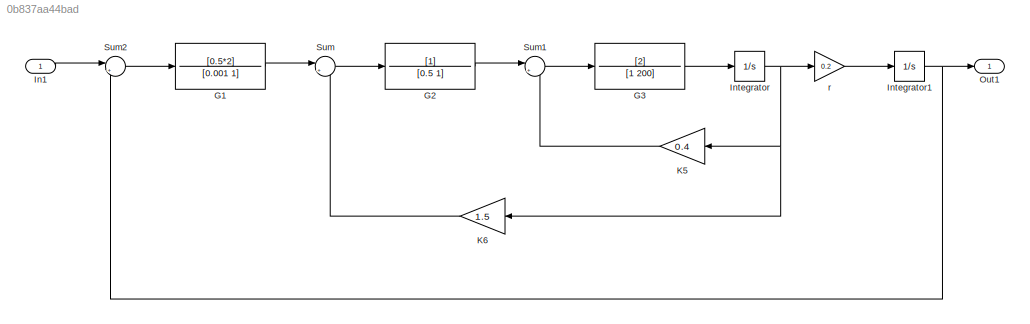
MODEL slx_0b837aa44bad
KIND model
CONFIG AbsTol = auto
CONFIG EnableMultiTasking = off
CONFIG FixedStep = auto
CONFIG MaxStep = auto
CONFIG MinStep = auto
CONFIG RelTol = 1e-3
CONFIG SampleTimeConstraint = Unconstrained
CONFIG SolverName = VariableStepAuto
CONFIG StartTime = 0.0
CONFIG StopTime = 10.0
BLOCK [TransferFcn] G1
  Denominator = [0.001 1]
  Numerator = [0.5*2]
BLOCK [TransferFcn] G2
  Denominator = [0.5 1]
BLOCK [TransferFcn] G3
  Denominator = [1 200]
  Numerator = [2]
BLOCK [Inport] In1
BLOCK [Integrator] Integrator
BLOCK [Integrator] Integrator1
BLOCK [Gain] K5
  Gain = 0.4
  NameLocation = top
BLOCK [Gain] K6
  Gain = 1.5
  NameLocation = top
BLOCK [Outport] Out1
BLOCK [Sum] Sum
  Inputs = |+-
BLOCK [Sum] Sum1
  Inputs = |+-
BLOCK [Sum] Sum2
  Inputs = |+-
BLOCK [Gain] r
  Gain = 0.2
LINE G1:1 -> Sum:1
LINE G2:1 -> Sum1:1
LINE G3:1 -> Integrator:1
LINE In1:1 -> Sum2:1
NET Integrator1:1 -> Out1:1, Sum2:2
NET Integrator:1 -> K5:1, K6:1, r:1
LINE K5:1 -> Sum1:2
LINE K6:1 -> Sum:2
LINE Sum1:1 -> G3:1
LINE Sum2:1 -> G1:1
LINE Sum:1 -> G2:1
LINE r:1 -> Integrator1:1
note: NET lines group one-source signal fan-out (src -> all destinations, sorted); 1:1 wires keep LINE
